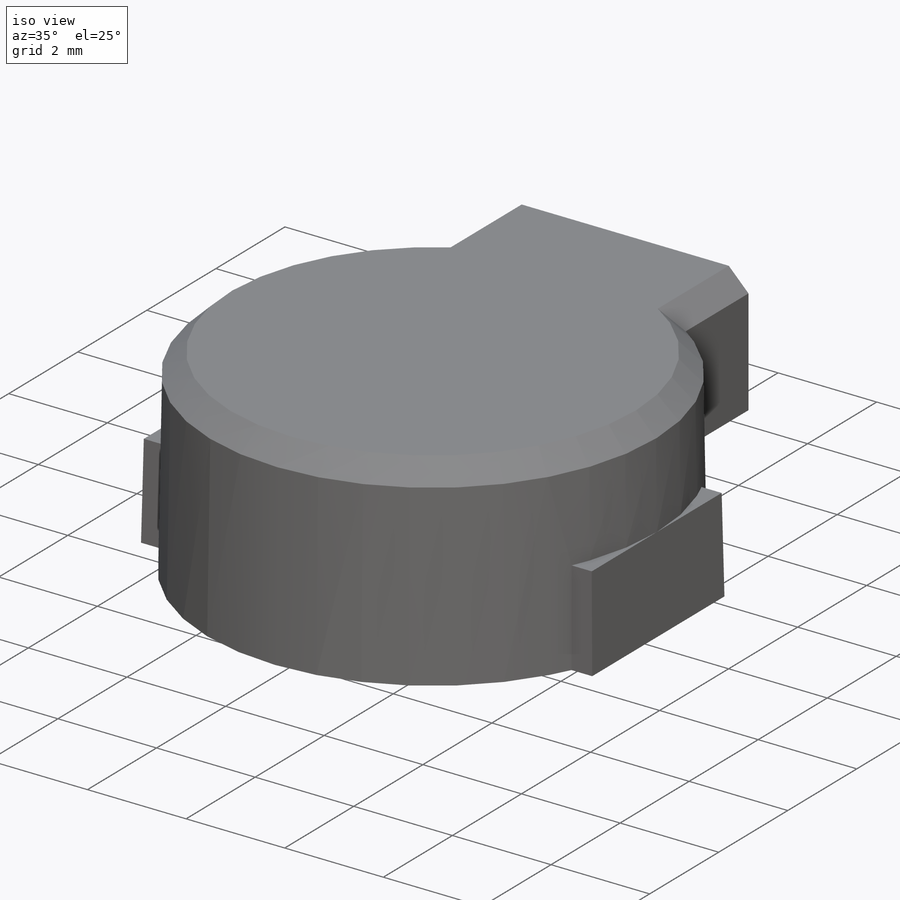
[diagram: iso view]
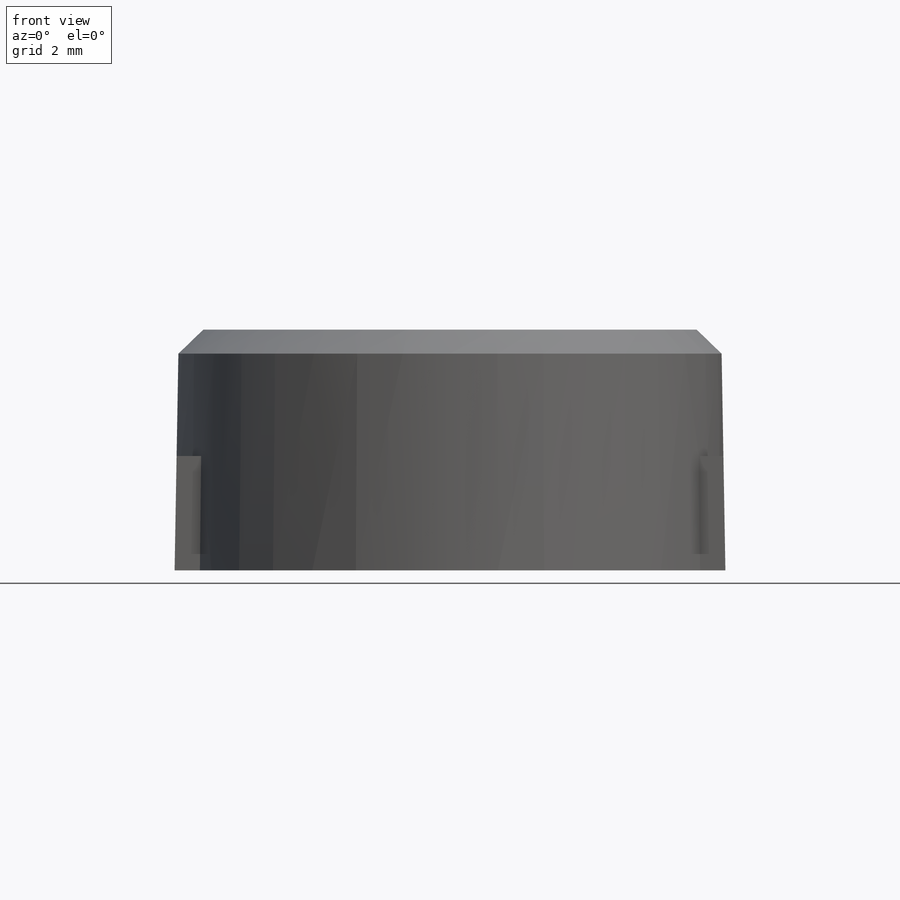
[diagram: front view]
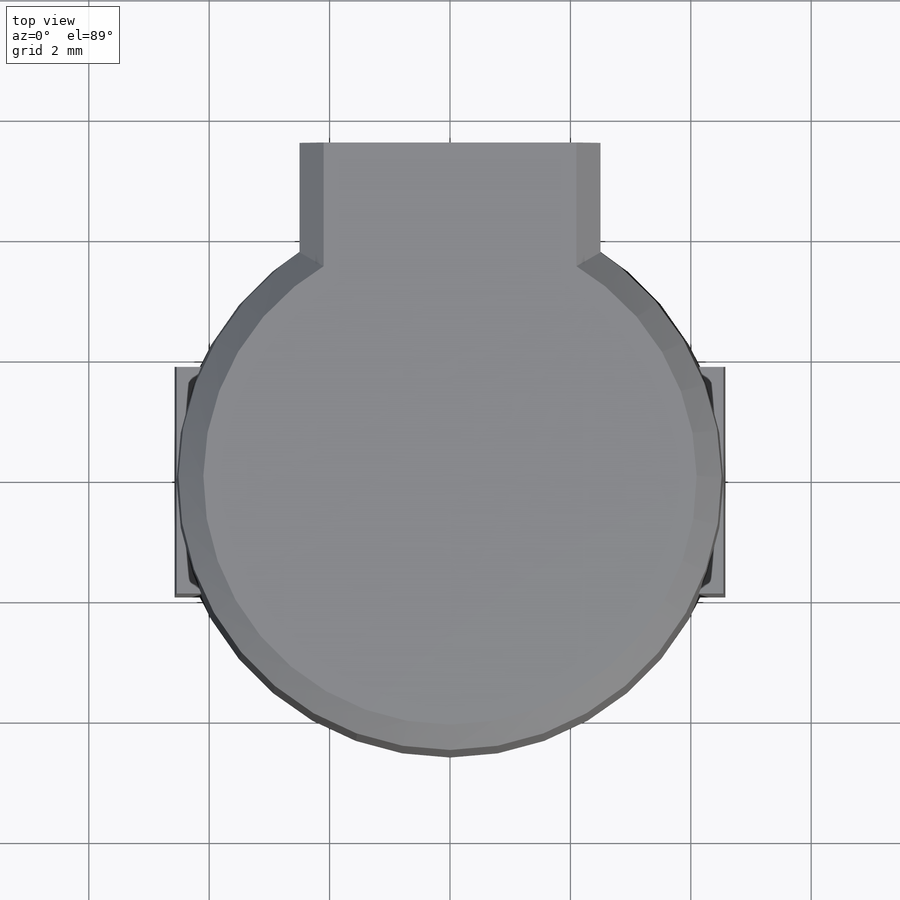
[diagram: top view]
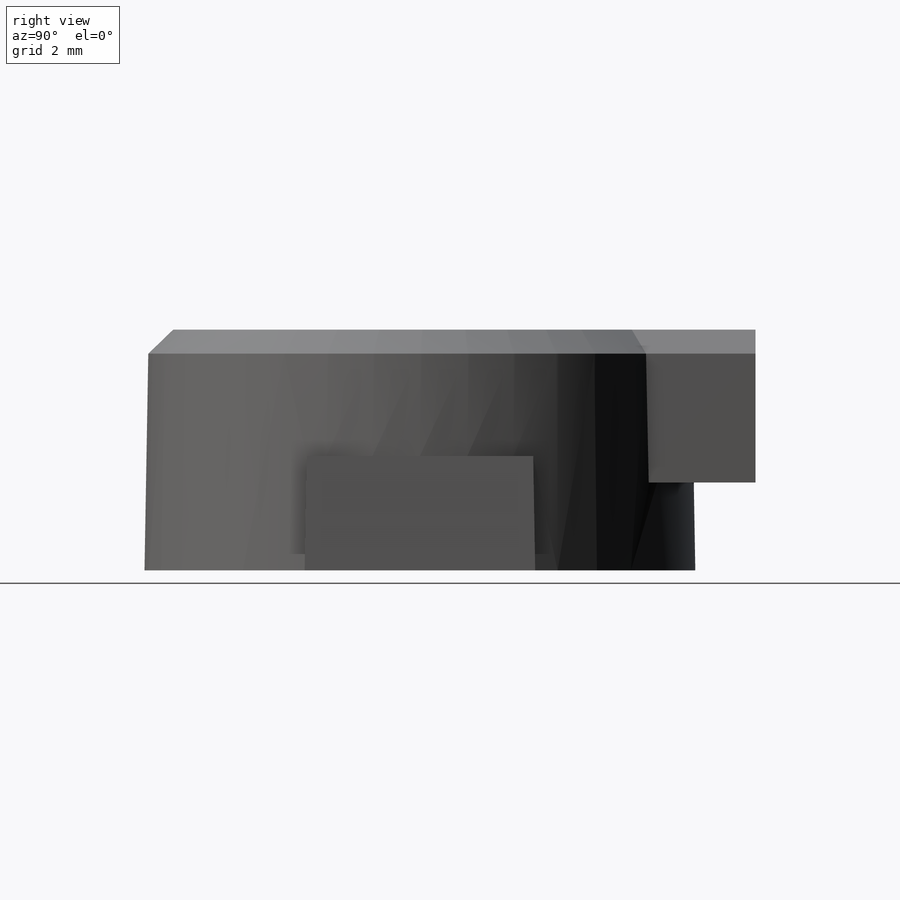
[diagram: right view]
SOLIDWORKS PART (.sldprt)
format: sldprt  version: not decoded by parser v0  size: 181,248 bytes
history: native  units: mm
features: sketch x5, plane x3, extrude x3, chamfer x3, cut_extrude x2, material x1 (+16 scaffold rows collapsed)
feature tree (33):
  scaffold x16  (default folders/planes/origin — collapsed)
  material  "Material <not specified>"
  plane  "Plane1"
  sketch  "Sketch1"
  extrude  "Extrude1"  Depth=1.9mm
  sketch  "Sketch2"
  extrude  "Extrude2"  Depth=2.1mm
  plane  "Plane2"
  sketch  "Sketch3"
  extrude  "Extrude3"  Depth=1.827115mm
  sketch  "Sketch4"
  cut_extrude  "Extrude4"  Depth=0.35mm
  sketch  "Sketch5"
  cut_extrude  "Extrude5"  Depth=5.575mm
  plane  "Plane3"  Offset=5.575mm
  chamfer  "Chamfer1"  Distance=0.407168mm Angle=44deg
  chamfer  "Chamfer2"  Distance=0.4mm Angle=45deg
  chamfer  "Chamfer3"  Distance=0.4mm Angle=45deg
decode coverage: 8 of 13 modeling features carry decoded parameters
note: suppression state not decoded; provenance and decode notes live in map.json
